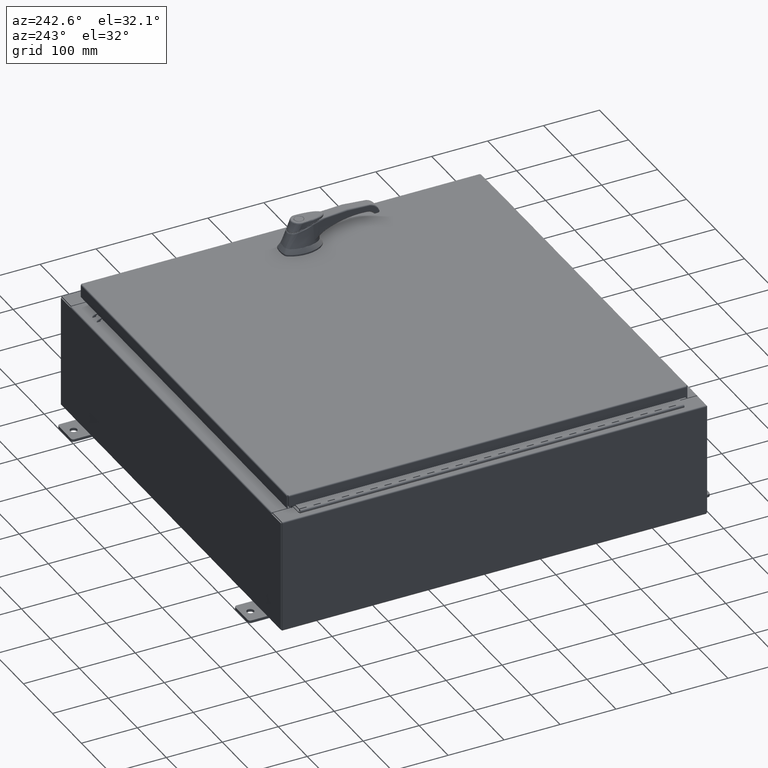
[diagram: clean part render]
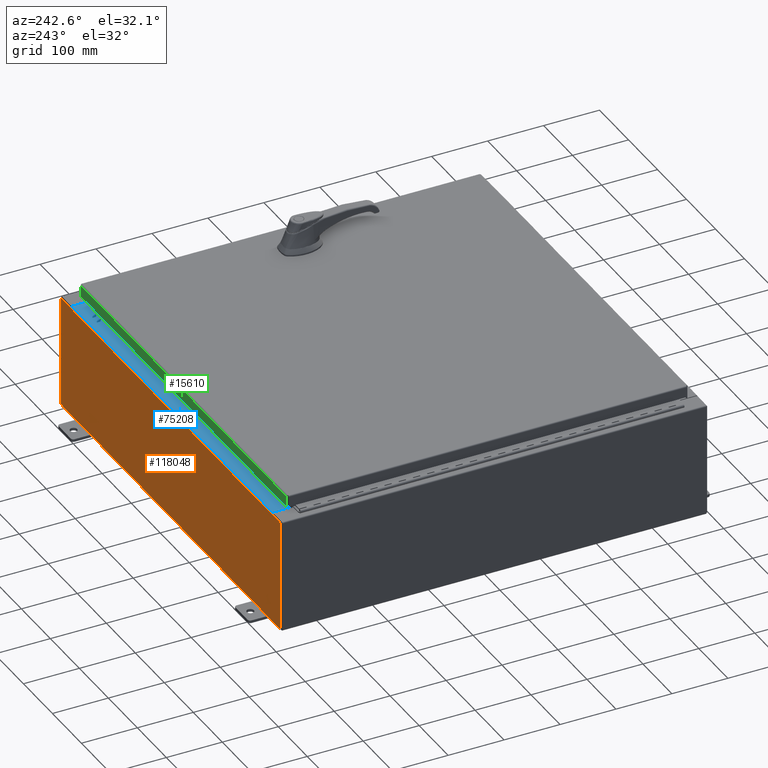
[diagram: same view with three faces highlighted in distinct colors, each labeled with its STEP entity id]
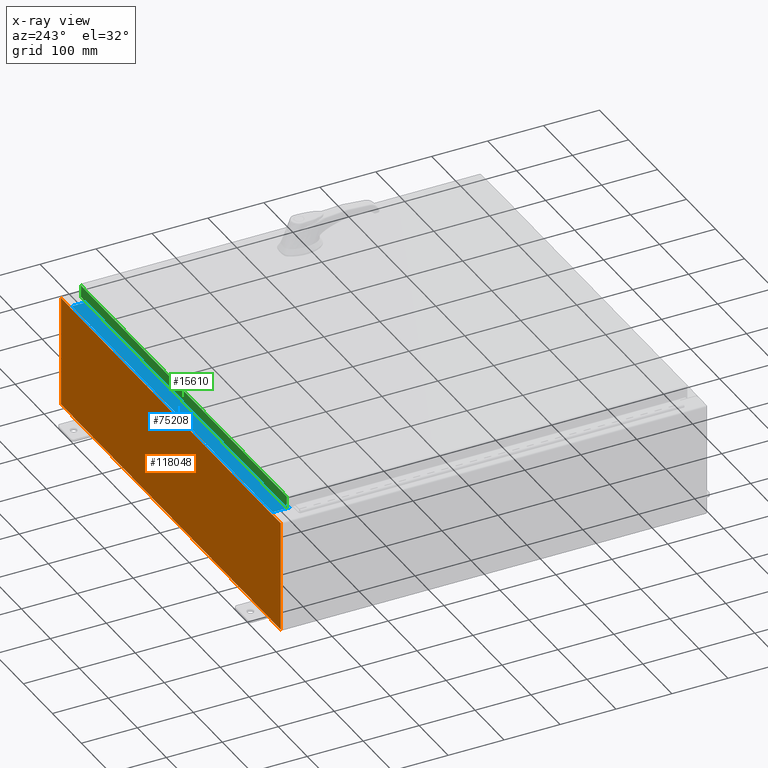
[diagram: x-ray of the same camera — body ghosted, the three highlighted faces saturated]
A machine part, auxiliary view with three faces highlighted in distinct colors.
The next image is the same camera in x-ray (body ghosted, the three faces saturated) — at least one of them is partly hidden behind the body in this view.
Their STEP definitions:

[orange] entity #118048 — the highlighted planar face has unit normal (0, -1, 0).
#501 = CIRCLE ( 'NONE', #52570, 0.01867499999999949400 ) ;
#1771 = LINE ( 'NONE', #21240, #99960 ) ;
#3194 = VECTOR ( 'NONE', #58149, 39.37007874015748100 ) ;
#3613 = VERTEX_POINT ( 'NONE', #22492 ) ;
#8211 = VERTEX_POINT ( 'NONE', #50855 ) ;
#10707 = ORIENTED_EDGE ( 'NONE', *, *, #14890, .T. ) ;
#13634 = DIRECTION ( 'NONE',  ( -4.340572780400004900E-014, 0.0000000000000000000, -1.000000000000000000 ) ) ;
#13770 = VERTEX_POINT ( 'NONE', #30573 ) ;
#14890 = EDGE_CURVE ( 'NONE', #65202, #67002, #28202, .T. ) ;
#15709 = ORIENTED_EDGE ( 'NONE', *, *, #21537, .F. ) ;
#15967 = LINE ( 'NONE', #82175, #89673 ) ;
#17117 = ORIENTED_EDGE ( 'NONE', *, *, #76770, .T. ) ;
#17226 = CARTESIAN_POINT ( 'NONE',  ( -13.67454999999999500, -0.0000000000000000000, 0.0000000000000000000 ) ) ;
#18423 = LINE ( 'NONE', #44207, #42891 ) ;
#19552 = CARTESIAN_POINT ( 'NONE',  ( 14.92530000000000200, 0.0000000000000000000, -3.925299999999999600 ) ) ;
#20777 = EDGE_CURVE ( 'NONE', #118724, #109632, #65101, .T. ) ;
#21025 = ORIENTED_EDGE ( 'NONE', *, *, #105312, .T. ) ;
#21240 = CARTESIAN_POINT ( 'NONE',  ( -14.92529999999999800, 0.0000000000000000000, 3.925299999999999600 ) ) ;
#21537 = EDGE_CURVE ( 'NONE', #3613, #66244, #65235, .T. ) ;
#22492 = CARTESIAN_POINT ( 'NONE',  ( 13.67455000000000400, 0.0000000000000000000, 3.925299999999999600 ) ) ;
#22809 = CARTESIAN_POINT ( 'NONE',  ( 0.0000000000000000000, 0.0000000000000000000, 0.0000000000000000000 ) ) ;
#23039 = EDGE_CURVE ( 'NONE', #8211, #65202, #1771, .T. ) ;
#27789 = AXIS2_PLACEMENT_3D ( 'NONE', #22809, #50578, #115264 ) ;
#28202 = LINE ( 'NONE', #99390, #77232 ) ;
#30528 = DIRECTION ( 'NONE',  ( -0.0000000000000000000, -0.0000000000000000000, 1.000000000000000000 ) ) ;
#30573 = CARTESIAN_POINT ( 'NONE',  ( -13.63719999999999600, -0.0000000000000000000, 3.874949999999999700 ) ) ;
#31054 = EDGE_CURVE ( 'NONE', #66244, #106025, #93164, .T. ) ;
#32292 = CARTESIAN_POINT ( 'NONE',  ( -13.67454999999999500, 0.0000000000000000000, 3.925299999999999600 ) ) ;
#32846 = VERTEX_POINT ( 'NONE', #97546 ) ;
#34577 = CARTESIAN_POINT ( 'NONE',  ( 13.63720000000000400, 0.0000000000000000000, 3.912299999999999700 ) ) ;
#36010 = DIRECTION ( 'NONE',  ( -1.000000000000000000, -0.0000000000000000000, -0.0000000000000000000 ) ) ;
#36300 = LINE ( 'NONE', #82044, #39183 ) ;
#39183 = VECTOR ( 'NONE', #36010, 39.37007874015748100 ) ;
#39742 = VECTOR ( 'NONE', #46285, 39.37007874015748100 ) ;
#40672 = VECTOR ( 'NONE', #13634, 39.37007874015748100 ) ;
#41453 = CARTESIAN_POINT ( 'NONE',  ( -13.67454999999999500, 0.0000000000000000000, 3.874949999999999700 ) ) ;
#42891 = VECTOR ( 'NONE', #53504, 39.37007874015748100 ) ;
#44207 = CARTESIAN_POINT ( 'NONE',  ( -13.63719999999999800, 1.024442997624098700E-016, 3.912299999999999700 ) ) ;
#44245 = EDGE_CURVE ( 'NONE', #13770, #105066, #501, .T. ) ;
#45369 = DIRECTION ( 'NONE',  ( 0.0000000000000000000, 0.0000000000000000000, 1.000000000000000000 ) ) ;
#46285 = DIRECTION ( 'NONE',  ( 0.0000000000000000000, 0.0000000000000000000, -1.000000000000000000 ) ) ;
#48822 = CARTESIAN_POINT ( 'NONE',  ( -14.92529999999999800, 0.0000000000000000000, 3.925299999999999600 ) ) ;
#48960 = FACE_OUTER_BOUND ( 'NONE', #84495, .T. ) ;
#49621 = CARTESIAN_POINT ( 'NONE',  ( 13.65587500000000200, 0.0000000000000000000, 3.874949999999999700 ) ) ;
#50578 = DIRECTION ( 'NONE',  ( 0.0000000000000000000, -1.000000000000000000, 0.0000000000000000000 ) ) ;
#50728 = CARTESIAN_POINT ( 'NONE',  ( -13.65587499999999600, 0.0000000000000000000, 3.874949999999999700 ) ) ;
#50855 = CARTESIAN_POINT ( 'NONE',  ( -14.92529999999999800, 0.0000000000000000000, -3.925299999999999600 ) ) ;
#52035 = ORIENTED_EDGE ( 'NONE', *, *, #106508, .F. ) ;
#52176 = LINE ( 'NONE', #48822, #3194 ) ;
#52570 = AXIS2_PLACEMENT_3D ( 'NONE', #50728, #115402, #60008 ) ;
#53504 = DIRECTION ( 'NONE',  ( 1.000000000000000000, 0.0000000000000000000, 0.0000000000000000000 ) ) ;
#57903 = CARTESIAN_POINT ( 'NONE',  ( 13.67455000000000200, 0.0000000000000000000, 3.874949999999999700 ) ) ;
#58149 = DIRECTION ( 'NONE',  ( 1.000000000000000000, 0.0000000000000000000, 0.0000000000000000000 ) ) ;
#58893 = DIRECTION ( 'NONE',  ( 0.0000000000000000000, 0.0000000000000000000, -1.000000000000000000 ) ) ;
#60008 = DIRECTION ( 'NONE',  ( 0.0000000000000000000, 0.0000000000000000000, -1.000000000000000000 ) ) ;
#60523 = DIRECTION ( 'NONE',  ( 0.0000000000000000000, 0.0000000000000000000, -1.000000000000000000 ) ) ;
#64455 = CARTESIAN_POINT ( 'NONE',  ( -13.63719999999999600, -0.0000000000000000000, 0.0000000000000000000 ) ) ;
#65101 = LINE ( 'NONE', #79118, #89689 ) ;
#65202 = VERTEX_POINT ( 'NONE', #94022 ) ;
#65235 = LINE ( 'NONE', #115010, #40672 ) ;
#65889 = LINE ( 'NONE', #17226, #112215 ) ;
#66244 = VERTEX_POINT ( 'NONE', #57903 ) ;
#67002 = VERTEX_POINT ( 'NONE', #32292 ) ;
#67328 = ORIENTED_EDGE ( 'NONE', *, *, #44245, .F. ) ;
#68776 = PLANE ( 'NONE',  #27789 ) ;
#71489 = DIRECTION ( 'NONE',  ( 1.000000000000000000, 0.0000000000000000000, 0.0000000000000000000 ) ) ;
#72947 = EDGE_CURVE ( 'NONE', #3613, #118724, #52176, .T. ) ;
#74051 = EDGE_CURVE ( 'NONE', #106025, #100195, #15967, .T. ) ;
#76770 = EDGE_CURVE ( 'NONE', #109632, #8211, #36300, .T. ) ;
#77232 = VECTOR ( 'NONE', #71489, 39.37007874015748100 ) ;
#79118 = CARTESIAN_POINT ( 'NONE',  ( 14.92530000000000200, 0.0000000000000000000, 3.925299999999999600 ) ) ;
#79288 = ORIENTED_EDGE ( 'NONE', *, *, #108868, .F. ) ;
#82044 = CARTESIAN_POINT ( 'NONE',  ( -14.92529999999999800, 0.0000000000000000000, -3.925299999999999600 ) ) ;
#82175 = CARTESIAN_POINT ( 'NONE',  ( 13.63720000000000400, 0.0000000000000000000, 0.0000000000000000000 ) ) ;
#82209 = ORIENTED_EDGE ( 'NONE', *, *, #74051, .F. ) ;
#84495 = EDGE_LOOP ( 'NONE', ( #52035, #67328, #79288, #21025, #82209, #111030, #15709, #109469, #86142, #17117, #87770, #10707 ) ) ;
#86142 = ORIENTED_EDGE ( 'NONE', *, *, #20777, .T. ) ;
#87770 = ORIENTED_EDGE ( 'NONE', *, *, #23039, .T. ) ;
#89673 = VECTOR ( 'NONE', #45369, 39.37007874015748100 ) ;
#89689 = VECTOR ( 'NONE', #60523, 39.37007874015748100 ) ;
#92773 = AXIS2_PLACEMENT_3D ( 'NONE', #49621, #114298, #58893 ) ;
#93164 = CIRCLE ( 'NONE', #92773, 0.01867499999999949400 ) ;
#94022 = CARTESIAN_POINT ( 'NONE',  ( -14.92529999999999800, 0.0000000000000000000, 3.925299999999999600 ) ) ;
#97546 = CARTESIAN_POINT ( 'NONE',  ( -13.63719999999999600, 1.024442997624098700E-016, 3.912299999999999700 ) ) ;
#97574 = LINE ( 'NONE', #64455, #39742 ) ;
#98161 = CARTESIAN_POINT ( 'NONE',  ( 13.63720000000000400, 0.0000000000000000000, 3.874949999999999700 ) ) ;
#99390 = CARTESIAN_POINT ( 'NONE',  ( -14.92529999999999800, 0.0000000000000000000, 3.925299999999999600 ) ) ;
#99960 = VECTOR ( 'NONE', #30528, 39.37007874015748100 ) ;
#100195 = VERTEX_POINT ( 'NONE', #34577 ) ;
#105066 = VERTEX_POINT ( 'NONE', #41453 ) ;
#105312 = EDGE_CURVE ( 'NONE', #32846, #100195, #18423, .T. ) ;
#106025 = VERTEX_POINT ( 'NONE', #98161 ) ;
#106508 = EDGE_CURVE ( 'NONE', #105066, #67002, #65889, .T. ) ;
#108868 = EDGE_CURVE ( 'NONE', #32846, #13770, #97574, .T. ) ;
#109317 = DIRECTION ( 'NONE',  ( 0.0000000000000000000, 0.0000000000000000000, 1.000000000000000000 ) ) ;
#109469 = ORIENTED_EDGE ( 'NONE', *, *, #72947, .T. ) ;
#109632 = VERTEX_POINT ( 'NONE', #19552 ) ;
#111030 = ORIENTED_EDGE ( 'NONE', *, *, #31054, .F. ) ;
#112215 = VECTOR ( 'NONE', #109317, 39.37007874015748100 ) ;
#114197 = CARTESIAN_POINT ( 'NONE',  ( 14.92530000000000200, 0.0000000000000000000, 3.925299999999999600 ) ) ;
#114298 = DIRECTION ( 'NONE',  ( -0.0000000000000000000, 1.000000000000000000, -0.0000000000000000000 ) ) ;
#115010 = CARTESIAN_POINT ( 'NONE',  ( 13.67454999999983300, -0.0000000000000000000, -5.935537951421816200E-013 ) ) ;
#115264 = DIRECTION ( 'NONE',  ( 0.0000000000000000000, -0.0000000000000000000, -1.000000000000000000 ) ) ;
#115402 = DIRECTION ( 'NONE',  ( -0.0000000000000000000, 1.000000000000000000, -0.0000000000000000000 ) ) ;
#118048 = ADVANCED_FACE ( 'NONE', ( #48960 ), #68776, .F. ) ;
#118724 = VERTEX_POINT ( 'NONE', #114197 ) ;

[blue] entity #75208 — the highlighted planar face has unit normal (0, 0, 1).
#1379 = VERTEX_POINT ( 'NONE', #25110 ) ;
#2001 = VECTOR ( 'NONE', #5662, 39.37007874015748100 ) ;
#2469 = PLANE ( 'NONE',  #61924 ) ;
#2869 = DIRECTION ( 'NONE',  ( 0.0000000000000000000, -1.000000000000000000, 3.566381192773190000E-015 ) ) ;
#5662 = DIRECTION ( 'NONE',  ( -0.0000000000000000000, 1.000000000000000000, -3.566381192773190000E-015 ) ) ;
#10461 = EDGE_CURVE ( 'NONE', #69643, #106272, #21566, .T. ) ;
#11042 = VECTOR ( 'NONE', #89977, 39.37007874015748100 ) ;
#13546 = EDGE_CURVE ( 'NONE', #69643, #1379, #35541, .T. ) ;
#19391 = CARTESIAN_POINT ( 'NONE',  ( -13.63719999999999800, -0.08770000000000000000, 4.000000000000000000 ) ) ;
#21566 = LINE ( 'NONE', #51213, #92373 ) ;
#24807 = ORIENTED_EDGE ( 'NONE', *, *, #10461, .T. ) ;
#25110 = CARTESIAN_POINT ( 'NONE',  ( 13.63720000000000400, -1.287299999999999900, 4.000000000000004400 ) ) ;
#29556 = VECTOR ( 'NONE', #41242, 39.37007874015748100 ) ;
#30279 = CARTESIAN_POINT ( 'NONE',  ( 0.0000000000000000000, 1.425992975200418500E-014, 4.000000000000000000 ) ) ;
#31752 = FACE_OUTER_BOUND ( 'NONE', #67923, .T. ) ;
#34341 = VERTEX_POINT ( 'NONE', #45631 ) ;
#35541 = LINE ( 'NONE', #61635, #11042 ) ;
#38984 = CARTESIAN_POINT ( 'NONE',  ( 13.63720000000000400, -0.08769999999999965300, 4.000000000000000000 ) ) ;
#41242 = DIRECTION ( 'NONE',  ( -1.000000000000000000, 0.0000000000000000000, 0.0000000000000000000 ) ) ;
#45631 = CARTESIAN_POINT ( 'NONE',  ( -13.63719999999999800, -1.287299999999999200, 4.000000000000004400 ) ) ;
#47784 = ORIENTED_EDGE ( 'NONE', *, *, #13546, .F. ) ;
#51119 = LINE ( 'NONE', #96607, #29556 ) ;
#51213 = CARTESIAN_POINT ( 'NONE',  ( -1.756834753793995900E-018, -0.08770000000000000000, 4.000000000000000900 ) ) ;
#58099 = DIRECTION ( 'NONE',  ( 0.0000000000000000000, 3.566381192773190000E-015, 1.000000000000000000 ) ) ;
#59668 = LINE ( 'NONE', #106958, #2001 ) ;
#61635 = CARTESIAN_POINT ( 'NONE',  ( 13.63720000000000400, -1.300299999999999800, 4.000000000000004400 ) ) ;
#61924 = AXIS2_PLACEMENT_3D ( 'NONE', #30279, #58099, #2869 ) ;
#67923 = EDGE_LOOP ( 'NONE', ( #107813, #106843, #47784, #24807 ) ) ;
#68655 = EDGE_CURVE ( 'NONE', #1379, #34341, #51119, .T. ) ;
#69643 = VERTEX_POINT ( 'NONE', #38984 ) ;
#75208 = ADVANCED_FACE ( 'NONE', ( #31752 ), #2469, .T. ) ;
#86961 = EDGE_CURVE ( 'NONE', #34341, #106272, #59668, .T. ) ;
#89977 = DIRECTION ( 'NONE',  ( -0.0000000000000000000, -1.000000000000000000, 3.566381192773190000E-015 ) ) ;
#92373 = VECTOR ( 'NONE', #106567, 39.37007874015748100 ) ;
#96607 = CARTESIAN_POINT ( 'NONE',  ( 13.63720000000000400, -1.287299999999999900, 4.000000000000003600 ) ) ;
#106272 = VERTEX_POINT ( 'NONE', #19391 ) ;
#106567 = DIRECTION ( 'NONE',  ( -1.000000000000000000, 2.003232330437526000E-017, -7.144290108027600900E-032 ) ) ;
#106843 = ORIENTED_EDGE ( 'NONE', *, *, #68655, .F. ) ;
#106958 = CARTESIAN_POINT ( 'NONE',  ( -13.63719999999999800, -0.07469999999999973900, 4.000000000000000000 ) ) ;
#107813 = ORIENTED_EDGE ( 'NONE', *, *, #86961, .F. ) ;

[green] entity #15610 — the highlighted planar face has unit normal (0, -1, -0).
#739 = EDGE_CURVE ( 'NONE', #45093, #39488, #51627, .T. ) ;
#1798 = VECTOR ( 'NONE', #3654, 39.37007874015748100 ) ;
#3654 = DIRECTION ( 'NONE',  ( 1.000000000000000000, -0.0000000000000000000, 1.261330583805775800E-016 ) ) ;
#11129 = EDGE_CURVE ( 'NONE', #45093, #19231, #79173, .T. ) ;
#12205 = FACE_OUTER_BOUND ( 'NONE', #25571, .T. ) ;
#15610 = ADVANCED_FACE ( 'NONE', ( #12205 ), #46994, .F. ) ;
#17252 = LINE ( 'NONE', #28166, #66360 ) ;
#19231 = VERTEX_POINT ( 'NONE', #99931 ) ;
#19978 = DIRECTION ( 'NONE',  ( 3.194218701939437300E-031, -1.000000000000000000, -2.532419924601855800E-015 ) ) ;
#25571 = EDGE_LOOP ( 'NONE', ( #39369, #114971, #104387, #95942 ) ) ;
#26282 = LINE ( 'NONE', #49598, #1798 ) ;
#27255 = VECTOR ( 'NONE', #54280, 39.37007874015748100 ) ;
#28166 = CARTESIAN_POINT ( 'NONE',  ( -13.98915786437626700, 14.09399999999999400, -0.07469999999999980800 ) ) ;
#39369 = ORIENTED_EDGE ( 'NONE', *, *, #11129, .F. ) ;
#39488 = VERTEX_POINT ( 'NONE', #57938 ) ;
#45093 = VERTEX_POINT ( 'NONE', #49395 ) ;
#46994 = PLANE ( 'NONE',  #60126 ) ;
#48765 = VECTOR ( 'NONE', #94868, 39.37007874015748100 ) ;
#49395 = CARTESIAN_POINT ( 'NONE',  ( 13.98915786437627400, 14.09399999999999400, -0.08769999999999789100 ) ) ;
#49598 = CARTESIAN_POINT ( 'NONE',  ( -14.07799999999999800, 14.09399999999999600, -0.9377000000000033100 ) ) ;
#51627 = LINE ( 'NONE', #95647, #48765 ) ;
#54280 = DIRECTION ( 'NONE',  ( -1.000000000000000000, -1.228545654592091200E-031, -7.762034361881697200E-017 ) ) ;
#57938 = CARTESIAN_POINT ( 'NONE',  ( 13.98915786437627400, 14.09399999999999600, -0.9376999999999997600 ) ) ;
#60126 = AXIS2_PLACEMENT_3D ( 'NONE', #75245, #19978, #84575 ) ;
#66360 = VECTOR ( 'NONE', #92764, 39.37007874015748100 ) ;
#75245 = CARTESIAN_POINT ( 'NONE',  ( -4.501931838513441200E-030, 14.09399999999999400, 3.595274007335012300E-014 ) ) ;
#79173 = LINE ( 'NONE', #81768, #27255 ) ;
#81768 = CARTESIAN_POINT ( 'NONE',  ( -14.07799999999999800, 14.09399999999999400, -0.08770000000000008300 ) ) ;
#84575 = DIRECTION ( 'NONE',  ( 0.0000000000000000000, 2.532419924601855800E-015, -1.000000000000000000 ) ) ;
#92764 = DIRECTION ( 'NONE',  ( -0.0000000000000000000, 2.532419924601855800E-015, -1.000000000000000000 ) ) ;
#94868 = DIRECTION ( 'NONE',  ( 0.0000000000000000000, 2.532419924601855800E-015, -1.000000000000000000 ) ) ;
#95647 = CARTESIAN_POINT ( 'NONE',  ( 13.98915786437627100, 14.09399999999999400, 3.595274007335012300E-014 ) ) ;
#95942 = ORIENTED_EDGE ( 'NONE', *, *, #117746, .F. ) ;
#99931 = CARTESIAN_POINT ( 'NONE',  ( -13.98915786437626900, 14.09399999999999400, -0.08769999999999898700 ) ) ;
#104387 = ORIENTED_EDGE ( 'NONE', *, *, #113650, .F. ) ;
#110150 = CARTESIAN_POINT ( 'NONE',  ( -13.98915786437626700, 14.09399999999999600, -0.9377000000000033100 ) ) ;
#112399 = VERTEX_POINT ( 'NONE', #110150 ) ;
#113650 = EDGE_CURVE ( 'NONE', #112399, #39488, #26282, .T. ) ;
#114971 = ORIENTED_EDGE ( 'NONE', *, *, #739, .T. ) ;
#117746 = EDGE_CURVE ( 'NONE', #19231, #112399, #17252, .T. ) ;